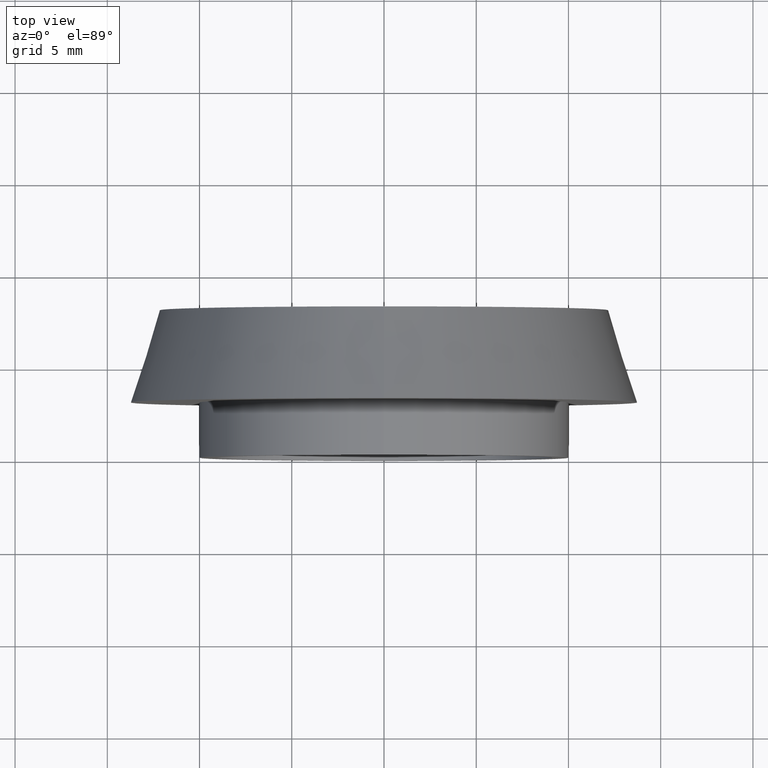
[diagram: clean part render]
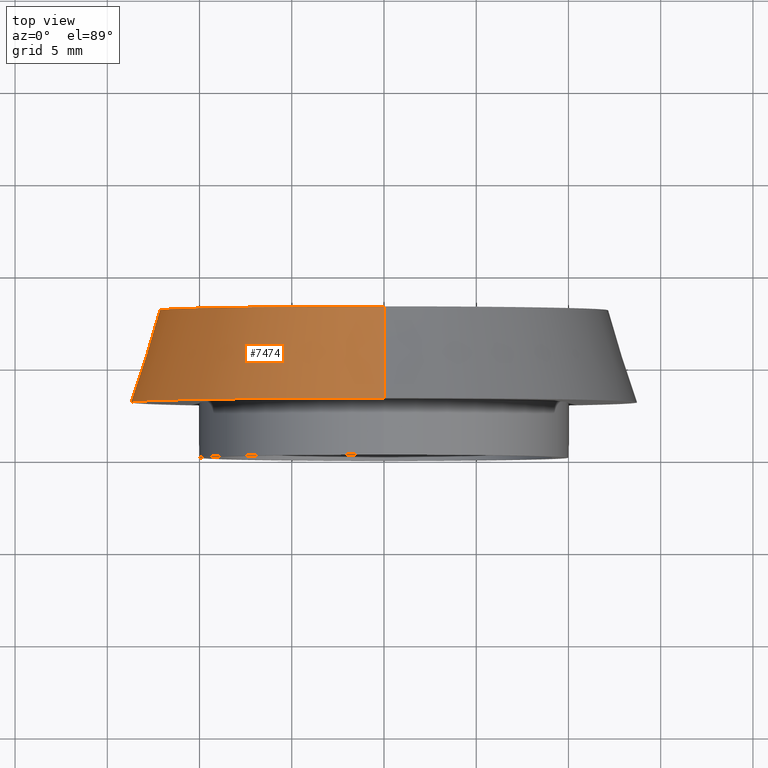
[diagram: same view with one face highlighted and labeled with its STEP entity id]
A machine part, top view. The second image highlights one B-rep face of the part: STEP entity #7474.
In plain terms, the highlighted conical surface has half-angle 17.745 deg.
Its self-contained STEP definition (entity closure, byte-faithful):
#293 = CARTESIAN_POINT ( 'NONE',  ( 1.585917604895822417E-15, 8.000000000000000000, 12.15000000000000036 ) ) ;
#383 = CARTESIAN_POINT ( 'NONE',  ( 0.000000000000000000, 8.000000000000000000, 0.000000000000000000 ) ) ;
#582 = CIRCLE ( 'NONE', #4743, 13.75000000000000000 ) ;
#1334 = CARTESIAN_POINT ( 'NONE',  ( 1.683889348827610654E-15, 3.000000000000000888, 13.75000000000000000 ) ) ;
#1755 = DIRECTION ( 'NONE',  ( -0.000000000000000000, -1.000000000000000000, -0.000000000000000000 ) ) ;
#1889 = FACE_OUTER_BOUND ( 'NONE', #2013, .T. ) ;
#2013 = EDGE_LOOP ( 'NONE', ( #6721, #5298, #11789, #3497 ) ) ;
#2327 = EDGE_CURVE ( 'NONE', #10553, #2738, #6472, .T. ) ;
#2738 = VERTEX_POINT ( 'NONE', #12112 ) ;
#3301 = AXIS2_PLACEMENT_3D ( 'NONE', #383, #7566, #10635 ) ;
#3497 = ORIENTED_EDGE ( 'NONE', *, *, #8584, .F. ) ;
#3854 = VERTEX_POINT ( 'NONE', #293 ) ;
#3872 = CARTESIAN_POINT ( 'NONE',  ( 0.000000000000000000, 3.000000000000000888, -13.75000000000000000 ) ) ;
#3919 = EDGE_CURVE ( 'NONE', #3854, #10553, #5973, .T. ) ;
#4125 = CARTESIAN_POINT ( 'NONE',  ( 0.000000000000000000, 8.000000000000000000, -12.15000000000000036 ) ) ;
#4307 = VECTOR ( 'NONE', #7558, 1000.000000000000000 ) ;
#4743 = AXIS2_PLACEMENT_3D ( 'NONE', #12615, #10490, #8553 ) ;
#4826 = CARTESIAN_POINT ( 'NONE',  ( 0.000000000000000000, 3.000000000000000888, 0.000000000000000000 ) ) ;
#5298 = ORIENTED_EDGE ( 'NONE', *, *, #3919, .T. ) ;
#5319 = CARTESIAN_POINT ( 'NONE',  ( 1.683889348827610654E-15, 3.000000000000000888, 13.75000000000000000 ) ) ;
#5973 = CIRCLE ( 'NONE', #3301, 12.15000000000000036 ) ;
#6472 = LINE ( 'NONE', #3872, #8204 ) ;
#6721 = ORIENTED_EDGE ( 'NONE', *, *, #7079, .F. ) ;
#7079 = EDGE_CURVE ( 'NONE', #3854, #13245, #11825, .T. ) ;
#7474 = ADVANCED_FACE ( 'NONE', ( #1889 ), #8948, .T. ) ;
#7558 = DIRECTION ( 'NONE',  ( 3.732426186554558078E-17, -0.9524241471993242225, 0.3047757271037835891 ) ) ;
#7566 = DIRECTION ( 'NONE',  ( -0.000000000000000000, -1.000000000000000000, -0.000000000000000000 ) ) ;
#8204 = VECTOR ( 'NONE', #9021, 1000.000000000000000 ) ;
#8553 = DIRECTION ( 'NONE',  ( 0.000000000000000000, 0.000000000000000000, -1.000000000000000000 ) ) ;
#8584 = EDGE_CURVE ( 'NONE', #13245, #2738, #582, .T. ) ;
#8948 = CONICAL_SURFACE ( 'NONE', #11662, 13.75000000000000000, 0.3097029445424560601 ) ;
#9021 = DIRECTION ( 'NONE',  ( 0.000000000000000000, -0.9524241471993242225, -0.3047757271037835891 ) ) ;
#10490 = DIRECTION ( 'NONE',  ( -0.000000000000000000, -1.000000000000000000, -0.000000000000000000 ) ) ;
#10553 = VERTEX_POINT ( 'NONE', #4125 ) ;
#10635 = DIRECTION ( 'NONE',  ( 0.000000000000000000, 0.000000000000000000, -1.000000000000000000 ) ) ;
#11662 = AXIS2_PLACEMENT_3D ( 'NONE', #4826, #1755, #11970 ) ;
#11789 = ORIENTED_EDGE ( 'NONE', *, *, #2327, .T. ) ;
#11825 = LINE ( 'NONE', #1334, #4307 ) ;
#11970 = DIRECTION ( 'NONE',  ( 0.000000000000000000, 0.000000000000000000, -1.000000000000000000 ) ) ;
#12112 = CARTESIAN_POINT ( 'NONE',  ( 0.000000000000000000, 3.000000000000000888, -13.75000000000000000 ) ) ;
#12615 = CARTESIAN_POINT ( 'NONE',  ( 0.000000000000000000, 3.000000000000000888, 0.000000000000000000 ) ) ;
#13245 = VERTEX_POINT ( 'NONE', #5319 ) ;